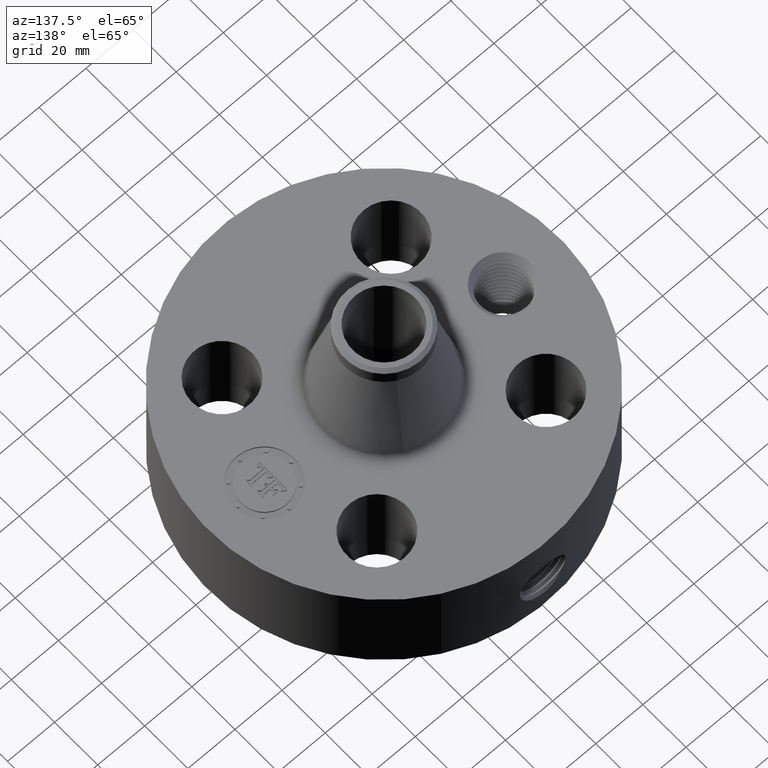
[diagram: clean part render]
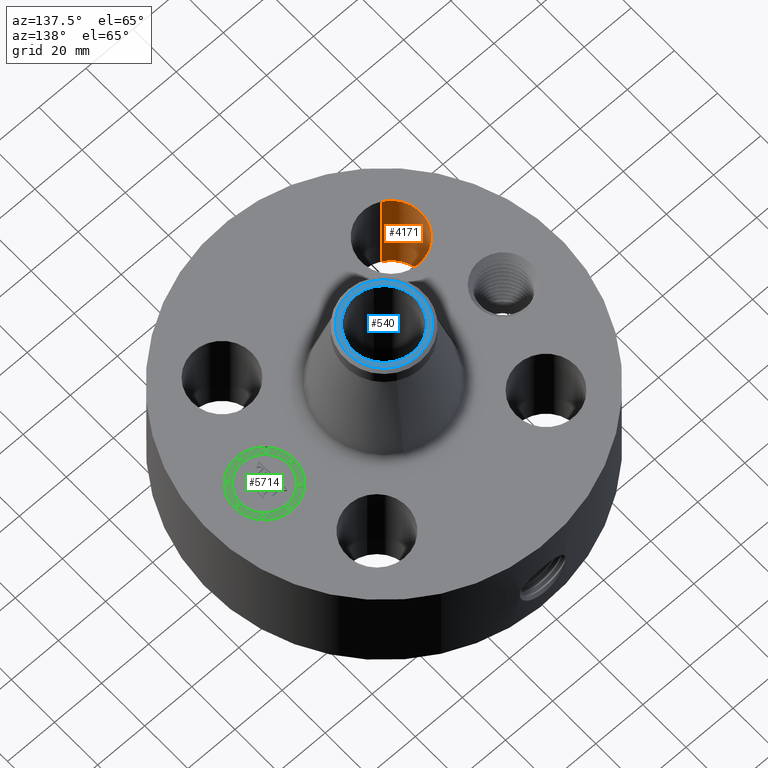
[diagram: same view with three faces highlighted in distinct colors, each labeled with its STEP entity id]
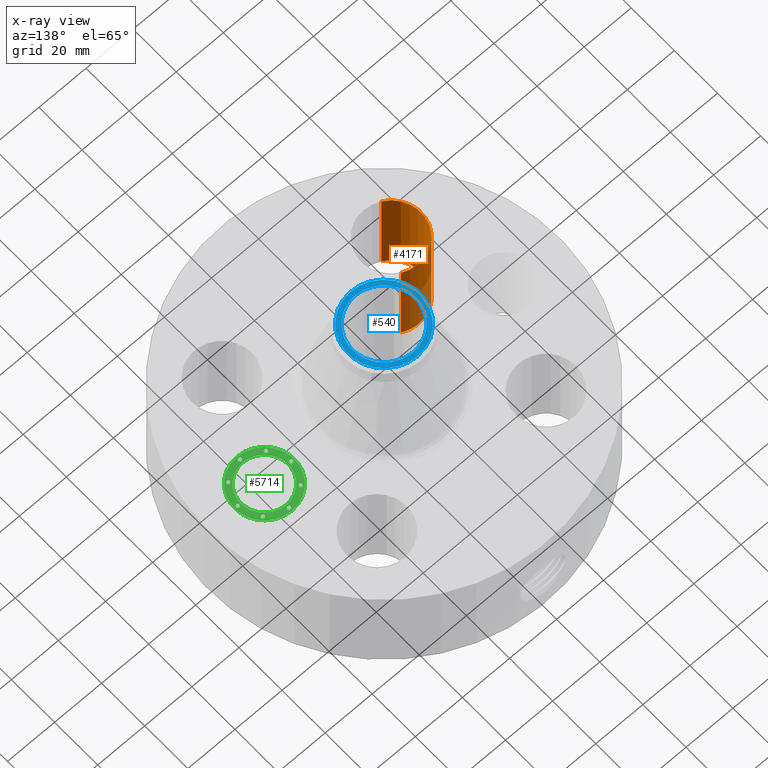
[diagram: x-ray of the same camera — body ghosted, the three highlighted faces saturated]
A machine part, auxiliary view with three faces highlighted in distinct colors.
The next image is the same camera in x-ray (body ghosted, the three faces saturated) — at least one of them is partly hidden behind the body in this view.
Their STEP definitions:

[orange] entity #4171 — the highlighted cylindrical surface (partial cylindrical patch) has radius 12.7 mm, axis along (0, -0, -1).
#2976=AXIS2_PLACEMENT_3D('Circle Axis2P3D',#2974,#2975,$) ;
#4132=AXIS2_PLACEMENT_3D('Cylinder Axis2P3D',#4129,#4130,#4131) ;
#4162=AXIS2_PLACEMENT_3D('Circle Axis2P3D',#4160,#4161,$) ;
#2974=CARTESIAN_POINT('Axis2P3D Location',(-1.41421356238,-1.41421356238,1.75000000001)) ;
#2978=CARTESIAN_POINT('Vertex',(-1.65392633168,-1.85300484333,1.75000000001)) ;
#2980=CARTESIAN_POINT('Vertex',(-1.17450079308,-0.975422281432,1.75000000001)) ;
#4129=CARTESIAN_POINT('Axis2P3D Location',(-1.41421356238,-1.41421356238,1.74606299213)) ;
#4134=CARTESIAN_POINT('Line Origine',(-1.17450079308,-0.975422281432,0.875000000003)) ;
#4138=CARTESIAN_POINT('Vertex',(-1.17450079308,-0.975422281432,0.)) ;
#4145=CARTESIAN_POINT('Vertex',(-1.65392633168,-1.85300484333,0.)) ;
#4148=CARTESIAN_POINT('Line Origine',(-1.65392633168,-1.85300484333,0.875000000003)) ;
#4160=CARTESIAN_POINT('Axis2P3D Location',(-1.41421356238,-1.41421356238,0.)) ;
#2975=DIRECTION('Axis2P3D Direction',(0.,0.,-0.0393700787402)) ;
#4130=DIRECTION('Axis2P3D Direction',(0.,-0.,-0.0393700787402)) ;
#4131=DIRECTION('Axis2P3D XDirection',(-0.0188750212049,-0.0345504945626,0.)) ;
#4135=DIRECTION('Vector Direction',(0.,0.,-0.0393700787402)) ;
#4149=DIRECTION('Vector Direction',(0.,0.,-0.0393700787402)) ;
#4161=DIRECTION('Axis2P3D Direction',(0.,-0.,-0.0393700787402)) ;
#4136=VECTOR('Line Direction',#4135,0.0393700787402) ;
#4150=VECTOR('Line Direction',#4149,0.0393700787402) ;
#4166=ORIENTED_EDGE('',*,*,#4152,.F.) ;
#4167=ORIENTED_EDGE('',*,*,#4164,.T.) ;
#4168=ORIENTED_EDGE('',*,*,#4140,.T.) ;
#4169=ORIENTED_EDGE('',*,*,#2982,.F.) ;
#4171=ADVANCED_FACE('PartBody',(#4170),#4133,.F.) ;
#2977=CIRCLE('generated circle',#2976,0.500000000002) ;
#4163=CIRCLE('generated circle',#4162,0.500000000002) ;
#4133=CYLINDRICAL_SURFACE('generated cylinder',#4132,0.500000000002) ;
#2982=EDGE_CURVE('',#2979,#2981,#2977,.T.) ;
#4140=EDGE_CURVE('',#4139,#2981,#4137,.F.) ;
#4152=EDGE_CURVE('',#4146,#2979,#4151,.F.) ;
#4164=EDGE_CURVE('',#4146,#4139,#4163,.T.) ;
#4165=EDGE_LOOP('',(#4166,#4167,#4168,#4169)) ;
#4170=FACE_OUTER_BOUND('',#4165,.T.) ;
#4137=LINE('Line',#4134,#4136) ;
#4151=LINE('Line',#4148,#4150) ;
#2979=VERTEX_POINT('',#2978) ;
#2981=VERTEX_POINT('',#2980) ;
#4139=VERTEX_POINT('',#4138) ;
#4146=VERTEX_POINT('',#4145) ;

[blue] entity #540 — the highlighted planar face has unit normal (0, 0, -1).
#236=AXIS2_PLACEMENT_3D('Circle Axis2P3D',#234,#235,$) ;
#511=AXIS2_PLACEMENT_3D('Plane Axis2P3D',#508,#509,#510) ;
#515=AXIS2_PLACEMENT_3D('Circle Axis2P3D',#513,#514,$) ;
#524=AXIS2_PLACEMENT_3D('Circle Axis2P3D',#522,#523,$) ;
#533=AXIS2_PLACEMENT_3D('Circle Axis2P3D',#531,#532,$) ;
#234=CARTESIAN_POINT('Axis2P3D Location',(0.,0.,3.50000000001)) ;
#238=CARTESIAN_POINT('Vertex',(0.251458694999,0.460292053713,3.50000000001)) ;
#240=CARTESIAN_POINT('Vertex',(-0.251458694999,-0.460292053713,3.50000000001)) ;
#508=CARTESIAN_POINT('Axis2P3D Location',(0.,0.660000000003,3.50000000001)) ;
#513=CARTESIAN_POINT('Axis2P3D Location',(0.,0.,3.50000000001)) ;
#517=CARTESIAN_POINT('Vertex',(0.289208737409,-0.529393042839,3.50000000001)) ;
#519=CARTESIAN_POINT('Vertex',(-0.289208737409,0.529393042839,3.50000000001)) ;
#522=CARTESIAN_POINT('Axis2P3D Location',(0.,0.,3.50000000001)) ;
#531=CARTESIAN_POINT('Axis2P3D Location',(0.,0.,3.50000000001)) ;
#235=DIRECTION('Axis2P3D Direction',(0.,0.,-0.0393700787402)) ;
#509=DIRECTION('Axis2P3D Direction',(0.,0.,-0.0393700787402)) ;
#510=DIRECTION('Axis2P3D XDirection',(0.0393700787402,0.,0.)) ;
#514=DIRECTION('Axis2P3D Direction',(0.,0.,-0.0393700787402)) ;
#523=DIRECTION('Axis2P3D Direction',(0.,0.,-0.0393700787402)) ;
#532=DIRECTION('Axis2P3D Direction',(0.,0.,-0.0393700787402)) ;
#528=ORIENTED_EDGE('',*,*,#521,.T.) ;
#529=ORIENTED_EDGE('',*,*,#526,.T.) ;
#537=ORIENTED_EDGE('',*,*,#535,.T.) ;
#538=ORIENTED_EDGE('',*,*,#242,.T.) ;
#539=FACE_BOUND('',#536,.T.) ;
#540=ADVANCED_FACE('PartBody',(#530,#539),#512,.F.) ;
#237=CIRCLE('generated circle',#236,0.524500000002) ;
#516=CIRCLE('generated circle',#515,0.603240157482) ;
#525=CIRCLE('generated circle',#524,0.603240157482) ;
#534=CIRCLE('generated circle',#533,0.524500000002) ;
#242=EDGE_CURVE('',#239,#241,#237,.T.) ;
#521=EDGE_CURVE('',#518,#520,#516,.F.) ;
#526=EDGE_CURVE('',#520,#518,#525,.F.) ;
#535=EDGE_CURVE('',#241,#239,#534,.T.) ;
#527=EDGE_LOOP('',(#528,#529)) ;
#536=EDGE_LOOP('',(#537,#538)) ;
#530=FACE_OUTER_BOUND('',#527,.T.) ;
#512=PLANE('',#511) ;
#239=VERTEX_POINT('',#238) ;
#241=VERTEX_POINT('',#240) ;
#518=VERTEX_POINT('',#517) ;
#520=VERTEX_POINT('',#519) ;

[green] entity #5714 — the highlighted planar face has unit normal (0, 0, 1).
#4272=AXIS2_PLACEMENT_3D('Circle Axis2P3D',#4270,#4271,$) ;
#4299=AXIS2_PLACEMENT_3D('Circle Axis2P3D',#4297,#4298,$) ;
#5546=AXIS2_PLACEMENT_3D('Plane Axis2P3D',#5543,#5544,#5545) ;
#5554=AXIS2_PLACEMENT_3D('Circle Axis2P3D',#5552,#5553,$) ;
#5563=AXIS2_PLACEMENT_3D('Circle Axis2P3D',#5561,#5562,$) ;
#5572=AXIS2_PLACEMENT_3D('Circle Axis2P3D',#5570,#5571,$) ;
#5581=AXIS2_PLACEMENT_3D('Circle Axis2P3D',#5579,#5580,$) ;
#5590=AXIS2_PLACEMENT_3D('Circle Axis2P3D',#5588,#5589,$) ;
#5599=AXIS2_PLACEMENT_3D('Circle Axis2P3D',#5597,#5598,$) ;
#5608=AXIS2_PLACEMENT_3D('Circle Axis2P3D',#5606,#5607,$) ;
#5617=AXIS2_PLACEMENT_3D('Circle Axis2P3D',#5615,#5616,$) ;
#5626=AXIS2_PLACEMENT_3D('Circle Axis2P3D',#5624,#5625,$) ;
#5635=AXIS2_PLACEMENT_3D('Circle Axis2P3D',#5633,#5634,$) ;
#5644=AXIS2_PLACEMENT_3D('Circle Axis2P3D',#5642,#5643,$) ;
#5653=AXIS2_PLACEMENT_3D('Circle Axis2P3D',#5651,#5652,$) ;
#5662=AXIS2_PLACEMENT_3D('Circle Axis2P3D',#5660,#5661,$) ;
#5671=AXIS2_PLACEMENT_3D('Circle Axis2P3D',#5669,#5670,$) ;
#5680=AXIS2_PLACEMENT_3D('Circle Axis2P3D',#5678,#5679,$) ;
#5689=AXIS2_PLACEMENT_3D('Circle Axis2P3D',#5687,#5688,$) ;
#5698=AXIS2_PLACEMENT_3D('Circle Axis2P3D',#5696,#5697,$) ;
#5707=AXIS2_PLACEMENT_3D('Circle Axis2P3D',#5705,#5706,$) ;
#4267=CARTESIAN_POINT('Vertex',(2.00000000001,-0.499999995002,1.73500000001)) ;
#4270=CARTESIAN_POINT('Axis2P3D Location',(2.00000000001,-5.00689401085E-015,1.73500000001)) ;
#4274=CARTESIAN_POINT('Vertex',(2.00000000001,0.499999995002,1.73500000001)) ;
#4297=CARTESIAN_POINT('Axis2P3D Location',(2.00000000001,-5.00689401085E-015,1.73500000001)) ;
#5543=CARTESIAN_POINT('Axis2P3D Location',(0.,0.,1.73500000001)) ;
#5552=CARTESIAN_POINT('Axis2P3D Location',(2.00000000001,-5.00689401085E-015,1.73500000001)) ;
#5556=CARTESIAN_POINT('Vertex',(2.00000000001,-0.393939390002,1.73500000001)) ;
#5558=CARTESIAN_POINT('Vertex',(2.00000000001,0.393939390002,1.73500000001)) ;
#5561=CARTESIAN_POINT('Axis2P3D Location',(2.00000000001,-5.00689401085E-015,1.73500000001)) ;
#5570=CARTESIAN_POINT('Axis2P3D Location',(1.55303030751,-6.27844506428E-015,1.73500000001)) ;
#5574=CARTESIAN_POINT('Vertex',(1.55303030751,-0.0303030300001,1.73500000001)) ;
#5576=CARTESIAN_POINT('Vertex',(1.55303030751,0.0303030300001,1.73500000001)) ;
#5579=CARTESIAN_POINT('Axis2P3D Location',(1.55303030751,-6.27844506428E-015,1.73500000001)) ;
#5588=CARTESIAN_POINT('Axis2P3D Location',(2.00000000001,0.446969692502,1.73500000001)) ;
#5592=CARTESIAN_POINT('Vertex',(2.00000000001,0.416666662502,1.73500000001)) ;
#5594=CARTESIAN_POINT('Vertex',(2.00000000001,0.477272722502,1.73500000001)) ;
#5597=CARTESIAN_POINT('Axis2P3D Location',(2.00000000001,0.446969692502,1.73500000001)) ;
#5606=CARTESIAN_POINT('Axis2P3D Location',(1.68394469946,0.316055300553,1.73500000001)) ;
#5610=CARTESIAN_POINT('Vertex',(1.68394469946,0.285752270553,1.73500000001)) ;
#5612=CARTESIAN_POINT('Vertex',(1.68394469946,0.346358330553,1.73500000001)) ;
#5615=CARTESIAN_POINT('Axis2P3D Location',(1.68394469946,0.316055300553,1.73500000001)) ;
#5624=CARTESIAN_POINT('Axis2P3D Location',(2.44696969251,6.71963237075E-015,1.73500000001)) ;
#5628=CARTESIAN_POINT('Vertex',(2.44696969251,-0.0303030300001,1.73500000001)) ;
#5630=CARTESIAN_POINT('Vertex',(2.44696969251,0.0303030300001,1.73500000001)) ;
#5633=CARTESIAN_POINT('Axis2P3D Location',(2.44696969251,6.71963237075E-015,1.73500000001)) ;
#5642=CARTESIAN_POINT('Axis2P3D Location',(2.31605530056,0.316055300553,1.73500000001)) ;
#5646=CARTESIAN_POINT('Vertex',(2.31605530056,0.285752270553,1.73500000001)) ;
#5648=CARTESIAN_POINT('Vertex',(2.31605530056,0.346358330553,1.73500000001)) ;
#5651=CARTESIAN_POINT('Axis2P3D Location',(2.31605530056,0.316055300553,1.73500000001)) ;
#5660=CARTESIAN_POINT('Axis2P3D Location',(2.00000000001,-0.446969692502,1.73500000001)) ;
#5664=CARTESIAN_POINT('Vertex',(2.00000000001,-0.416666662502,1.73500000001)) ;
#5666=CARTESIAN_POINT('Vertex',(2.00000000001,-0.477272722502,1.73500000001)) ;
#5669=CARTESIAN_POINT('Axis2P3D Location',(2.00000000001,-0.446969692502,1.73500000001)) ;
#5678=CARTESIAN_POINT('Axis2P3D Location',(1.68394469946,-0.316055300553,1.73500000001)) ;
#5682=CARTESIAN_POINT('Vertex',(1.68394469946,-0.285752270553,1.73500000001)) ;
#5684=CARTESIAN_POINT('Vertex',(1.68394469946,-0.346358330553,1.73500000001)) ;
#5687=CARTESIAN_POINT('Axis2P3D Location',(1.68394469946,-0.316055300553,1.73500000001)) ;
#5696=CARTESIAN_POINT('Axis2P3D Location',(2.31605530056,-0.316055300553,1.73500000001)) ;
#5700=CARTESIAN_POINT('Vertex',(2.31605530056,-0.285752270553,1.73500000001)) ;
#5702=CARTESIAN_POINT('Vertex',(2.31605530056,-0.346358330553,1.73500000001)) ;
#5705=CARTESIAN_POINT('Axis2P3D Location',(2.31605530056,-0.316055300553,1.73500000001)) ;
#4271=DIRECTION('Axis2P3D Direction',(0.,0.,0.0393700787402)) ;
#4298=DIRECTION('Axis2P3D Direction',(0.,0.,0.0393700787402)) ;
#5544=DIRECTION('Axis2P3D Direction',(0.,0.,0.0393700787402)) ;
#5545=DIRECTION('Axis2P3D XDirection',(0.0393700787402,0.,0.)) ;
#5553=DIRECTION('Axis2P3D Direction',(0.,0.,0.0393700787402)) ;
#5562=DIRECTION('Axis2P3D Direction',(0.,0.,0.0393700787402)) ;
#5571=DIRECTION('Axis2P3D Direction',(0.,0.,0.0393700787402)) ;
#5580=DIRECTION('Axis2P3D Direction',(0.,0.,0.0393700787402)) ;
#5589=DIRECTION('Axis2P3D Direction',(0.,0.,0.0393700787402)) ;
#5598=DIRECTION('Axis2P3D Direction',(0.,0.,0.0393700787402)) ;
#5607=DIRECTION('Axis2P3D Direction',(0.,0.,0.0393700787402)) ;
#5616=DIRECTION('Axis2P3D Direction',(0.,0.,0.0393700787402)) ;
#5625=DIRECTION('Axis2P3D Direction',(0.,0.,0.0393700787402)) ;
#5634=DIRECTION('Axis2P3D Direction',(0.,0.,0.0393700787402)) ;
#5643=DIRECTION('Axis2P3D Direction',(0.,0.,0.0393700787402)) ;
#5652=DIRECTION('Axis2P3D Direction',(0.,0.,0.0393700787402)) ;
#5661=DIRECTION('Axis2P3D Direction',(0.,0.,0.0393700787402)) ;
#5670=DIRECTION('Axis2P3D Direction',(0.,0.,0.0393700787402)) ;
#5679=DIRECTION('Axis2P3D Direction',(0.,0.,0.0393700787402)) ;
#5688=DIRECTION('Axis2P3D Direction',(0.,0.,0.0393700787402)) ;
#5697=DIRECTION('Axis2P3D Direction',(0.,0.,0.0393700787402)) ;
#5706=DIRECTION('Axis2P3D Direction',(0.,0.,0.0393700787402)) ;
#5549=ORIENTED_EDGE('',*,*,#4276,.T.) ;
#5550=ORIENTED_EDGE('',*,*,#4301,.T.) ;
#5567=ORIENTED_EDGE('',*,*,#5560,.F.) ;
#5568=ORIENTED_EDGE('',*,*,#5565,.F.) ;
#5585=ORIENTED_EDGE('',*,*,#5578,.F.) ;
#5586=ORIENTED_EDGE('',*,*,#5583,.F.) ;
#5603=ORIENTED_EDGE('',*,*,#5596,.F.) ;
#5604=ORIENTED_EDGE('',*,*,#5601,.F.) ;
#5621=ORIENTED_EDGE('',*,*,#5614,.F.) ;
#5622=ORIENTED_EDGE('',*,*,#5619,.F.) ;
#5639=ORIENTED_EDGE('',*,*,#5632,.F.) ;
#5640=ORIENTED_EDGE('',*,*,#5637,.F.) ;
#5657=ORIENTED_EDGE('',*,*,#5650,.F.) ;
#5658=ORIENTED_EDGE('',*,*,#5655,.F.) ;
#5675=ORIENTED_EDGE('',*,*,#5668,.F.) ;
#5676=ORIENTED_EDGE('',*,*,#5673,.F.) ;
#5693=ORIENTED_EDGE('',*,*,#5686,.F.) ;
#5694=ORIENTED_EDGE('',*,*,#5691,.F.) ;
#5711=ORIENTED_EDGE('',*,*,#5704,.F.) ;
#5712=ORIENTED_EDGE('',*,*,#5709,.F.) ;
#5569=FACE_BOUND('',#5566,.T.) ;
#5587=FACE_BOUND('',#5584,.T.) ;
#5605=FACE_BOUND('',#5602,.T.) ;
#5623=FACE_BOUND('',#5620,.T.) ;
#5641=FACE_BOUND('',#5638,.T.) ;
#5659=FACE_BOUND('',#5656,.T.) ;
#5677=FACE_BOUND('',#5674,.T.) ;
#5695=FACE_BOUND('',#5692,.T.) ;
#5713=FACE_BOUND('',#5710,.T.) ;
#5714=ADVANCED_FACE('PartBody',(#5551,#5569,#5587,#5605,#5623,#5641,#5659,#5677,#5695,#5713),#5547,.T.) ;
#4273=CIRCLE('generated circle',#4272,0.499999995002) ;
#4300=CIRCLE('generated circle',#4299,0.499999995002) ;
#5555=CIRCLE('generated circle',#5554,0.393939390002) ;
#5564=CIRCLE('generated circle',#5563,0.393939390002) ;
#5573=CIRCLE('generated circle',#5572,0.0303030300001) ;
#5582=CIRCLE('generated circle',#5581,0.0303030300001) ;
#5591=CIRCLE('generated circle',#5590,0.0303030300001) ;
#5600=CIRCLE('generated circle',#5599,0.0303030300001) ;
#5609=CIRCLE('generated circle',#5608,0.0303030300001) ;
#5618=CIRCLE('generated circle',#5617,0.0303030300001) ;
#5627=CIRCLE('generated circle',#5626,0.0303030300001) ;
#5636=CIRCLE('generated circle',#5635,0.0303030300001) ;
#5645=CIRCLE('generated circle',#5644,0.0303030300001) ;
#5654=CIRCLE('generated circle',#5653,0.0303030300001) ;
#5663=CIRCLE('generated circle',#5662,0.0303030300001) ;
#5672=CIRCLE('generated circle',#5671,0.0303030300001) ;
#5681=CIRCLE('generated circle',#5680,0.0303030300001) ;
#5690=CIRCLE('generated circle',#5689,0.0303030300001) ;
#5699=CIRCLE('generated circle',#5698,0.0303030300001) ;
#5708=CIRCLE('generated circle',#5707,0.0303030300001) ;
#4276=EDGE_CURVE('',#4275,#4268,#4273,.T.) ;
#4301=EDGE_CURVE('',#4268,#4275,#4300,.T.) ;
#5560=EDGE_CURVE('',#5557,#5559,#5555,.T.) ;
#5565=EDGE_CURVE('',#5559,#5557,#5564,.T.) ;
#5578=EDGE_CURVE('',#5575,#5577,#5573,.T.) ;
#5583=EDGE_CURVE('',#5577,#5575,#5582,.T.) ;
#5596=EDGE_CURVE('',#5593,#5595,#5591,.T.) ;
#5601=EDGE_CURVE('',#5595,#5593,#5600,.T.) ;
#5614=EDGE_CURVE('',#5611,#5613,#5609,.T.) ;
#5619=EDGE_CURVE('',#5613,#5611,#5618,.T.) ;
#5632=EDGE_CURVE('',#5629,#5631,#5627,.T.) ;
#5637=EDGE_CURVE('',#5631,#5629,#5636,.T.) ;
#5650=EDGE_CURVE('',#5647,#5649,#5645,.T.) ;
#5655=EDGE_CURVE('',#5649,#5647,#5654,.T.) ;
#5668=EDGE_CURVE('',#5665,#5667,#5663,.T.) ;
#5673=EDGE_CURVE('',#5667,#5665,#5672,.T.) ;
#5686=EDGE_CURVE('',#5683,#5685,#5681,.T.) ;
#5691=EDGE_CURVE('',#5685,#5683,#5690,.T.) ;
#5704=EDGE_CURVE('',#5701,#5703,#5699,.T.) ;
#5709=EDGE_CURVE('',#5703,#5701,#5708,.T.) ;
#5548=EDGE_LOOP('',(#5549,#5550)) ;
#5566=EDGE_LOOP('',(#5567,#5568)) ;
#5584=EDGE_LOOP('',(#5585,#5586)) ;
#5602=EDGE_LOOP('',(#5603,#5604)) ;
#5620=EDGE_LOOP('',(#5621,#5622)) ;
#5638=EDGE_LOOP('',(#5639,#5640)) ;
#5656=EDGE_LOOP('',(#5657,#5658)) ;
#5674=EDGE_LOOP('',(#5675,#5676)) ;
#5692=EDGE_LOOP('',(#5693,#5694)) ;
#5710=EDGE_LOOP('',(#5711,#5712)) ;
#5551=FACE_OUTER_BOUND('',#5548,.T.) ;
#5547=PLANE('',#5546) ;
#4268=VERTEX_POINT('',#4267) ;
#4275=VERTEX_POINT('',#4274) ;
#5557=VERTEX_POINT('',#5556) ;
#5559=VERTEX_POINT('',#5558) ;
#5575=VERTEX_POINT('',#5574) ;
#5577=VERTEX_POINT('',#5576) ;
#5593=VERTEX_POINT('',#5592) ;
#5595=VERTEX_POINT('',#5594) ;
#5611=VERTEX_POINT('',#5610) ;
#5613=VERTEX_POINT('',#5612) ;
#5629=VERTEX_POINT('',#5628) ;
#5631=VERTEX_POINT('',#5630) ;
#5647=VERTEX_POINT('',#5646) ;
#5649=VERTEX_POINT('',#5648) ;
#5665=VERTEX_POINT('',#5664) ;
#5667=VERTEX_POINT('',#5666) ;
#5683=VERTEX_POINT('',#5682) ;
#5685=VERTEX_POINT('',#5684) ;
#5701=VERTEX_POINT('',#5700) ;
#5703=VERTEX_POINT('',#5702) ;